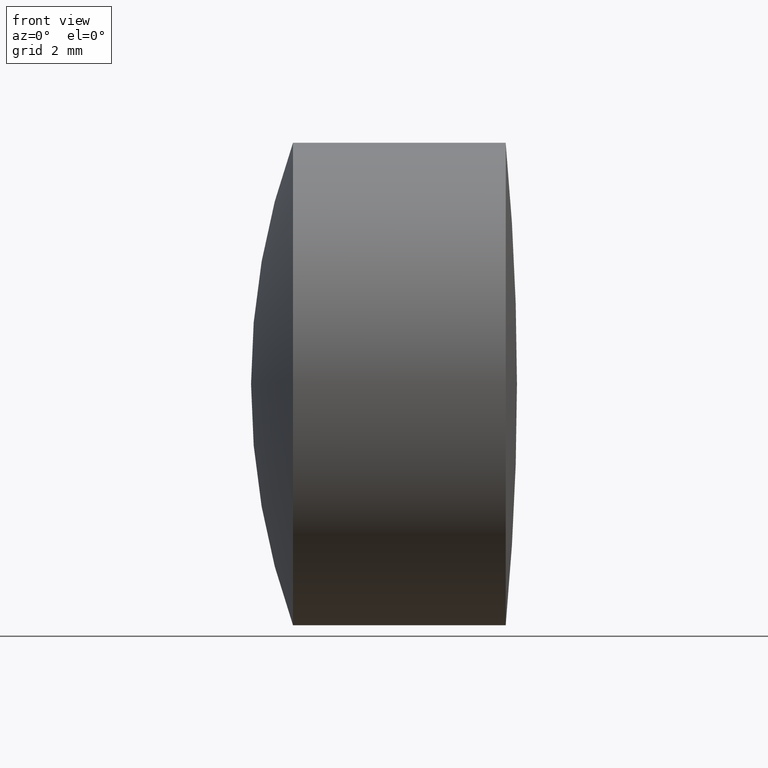
[diagram: clean part render]
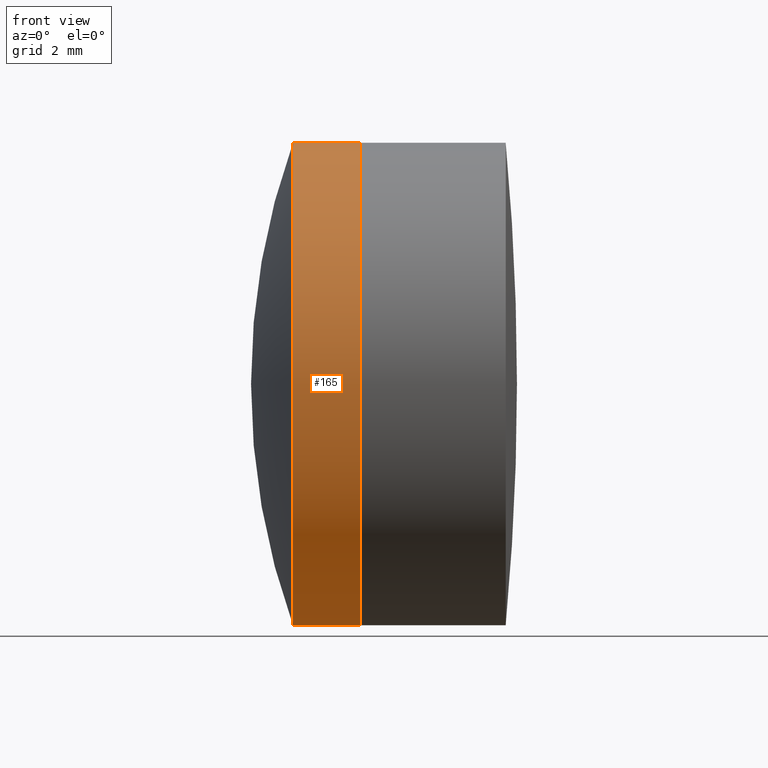
[diagram: same view with one face highlighted and labeled with its STEP entity id]
A machine part, front view. The second image highlights one B-rep face of the part: STEP entity #165.
In plain terms, the highlighted cylindrical surface (partial cylindrical patch) has radius 6.35 mm, axis along (-1, -0, -0).
Its self-contained STEP definition (entity closure, byte-faithful):
#6 = CARTESIAN_POINT ( 'NONE',  ( -2.417297294726642200, -7.776507174585684300E-016, 6.349999999999992500 ) ) ;
#7 = VERTEX_POINT ( 'NONE', #32 ) ;
#13 = DIRECTION ( 'NONE',  ( 0.0000000000000000000, 0.0000000000000000000, 1.000000000000000000 ) ) ;
#19 = LINE ( 'NONE', #133, #129 ) ;
#20 = EDGE_CURVE ( 'NONE', #106, #189, #288, .T. ) ;
#32 = CARTESIAN_POINT ( 'NONE',  ( -0.6346800517470357900, 7.776507174585692200E-016, -6.349999999999999600 ) ) ;
#40 = DIRECTION ( 'NONE',  ( -1.000000000000000000, -0.0000000000000000000, -0.0000000000000000000 ) ) ;
#50 = AXIS2_PLACEMENT_3D ( 'NONE', #244, #197, #13 ) ;
#54 = CARTESIAN_POINT ( 'NONE',  ( -9.702612178336682500, 0.0000000000000000000, 0.0000000000000000000 ) ) ;
#68 = EDGE_CURVE ( 'NONE', #7, #232, #19, .T. ) ;
#81 = ORIENTED_EDGE ( 'NONE', *, *, #20, .T. ) ;
#97 = VECTOR ( 'NONE', #218, 1000.000000000000000 ) ;
#106 = VERTEX_POINT ( 'NONE', #338 ) ;
#110 = DIRECTION ( 'NONE',  ( -1.000000000000000000, -0.0000000000000000000, -0.0000000000000000000 ) ) ;
#120 = AXIS2_PLACEMENT_3D ( 'NONE', #199, #40, #225 ) ;
#129 = VECTOR ( 'NONE', #304, 1000.000000000000000 ) ;
#133 = CARTESIAN_POINT ( 'NONE',  ( -9.702612178336682500, 7.776507174585692200E-016, -6.349999999999999600 ) ) ;
#135 = CIRCLE ( 'NONE', #50, 6.349999999999999600 ) ;
#154 = AXIS2_PLACEMENT_3D ( 'NONE', #54, #110, #284 ) ;
#164 = FACE_OUTER_BOUND ( 'NONE', #216, .T. ) ;
#165 = ADVANCED_FACE ( 'NONE', ( #164 ), #300, .T. ) ;
#189 = VERTEX_POINT ( 'NONE', #6 ) ;
#197 = DIRECTION ( 'NONE',  ( -1.000000000000000000, -0.0000000000000000000, -0.0000000000000000000 ) ) ;
#199 = CARTESIAN_POINT ( 'NONE',  ( -2.417297294726639600, 0.0000000000000000000, 0.0000000000000000000 ) ) ;
#216 = EDGE_LOOP ( 'NONE', ( #332, #220, #81, #279 ) ) ;
#218 = DIRECTION ( 'NONE',  ( -1.000000000000000000, -0.0000000000000000000, -0.0000000000000000000 ) ) ;
#220 = ORIENTED_EDGE ( 'NONE', *, *, #267, .T. ) ;
#222 = CARTESIAN_POINT ( 'NONE',  ( -2.417297294726642200, 0.0000000000000000000, -6.349999999999992500 ) ) ;
#225 = DIRECTION ( 'NONE',  ( 0.0000000000000000000, 0.0000000000000000000, 1.000000000000000000 ) ) ;
#232 = VERTEX_POINT ( 'NONE', #222 ) ;
#244 = CARTESIAN_POINT ( 'NONE',  ( -0.6346800517470357900, 0.0000000000000000000, 0.0000000000000000000 ) ) ;
#253 = CIRCLE ( 'NONE', #120, 6.349999999999999600 ) ;
#267 = EDGE_CURVE ( 'NONE', #7, #106, #135, .T. ) ;
#279 = ORIENTED_EDGE ( 'NONE', *, *, #312, .F. ) ;
#284 = DIRECTION ( 'NONE',  ( 0.0000000000000000000, 0.0000000000000000000, 1.000000000000000000 ) ) ;
#288 = LINE ( 'NONE', #292, #97 ) ;
#292 = CARTESIAN_POINT ( 'NONE',  ( -9.702612178336682500, 0.0000000000000000000, 6.349999999999999600 ) ) ;
#300 = CYLINDRICAL_SURFACE ( 'NONE', #154, 6.349999999999999600 ) ;
#304 = DIRECTION ( 'NONE',  ( -1.000000000000000000, -0.0000000000000000000, -0.0000000000000000000 ) ) ;
#312 = EDGE_CURVE ( 'NONE', #232, #189, #253, .T. ) ;
#332 = ORIENTED_EDGE ( 'NONE', *, *, #68, .F. ) ;
#338 = CARTESIAN_POINT ( 'NONE',  ( -0.6346800517470357900, 0.0000000000000000000, 6.349999999999999600 ) ) ;